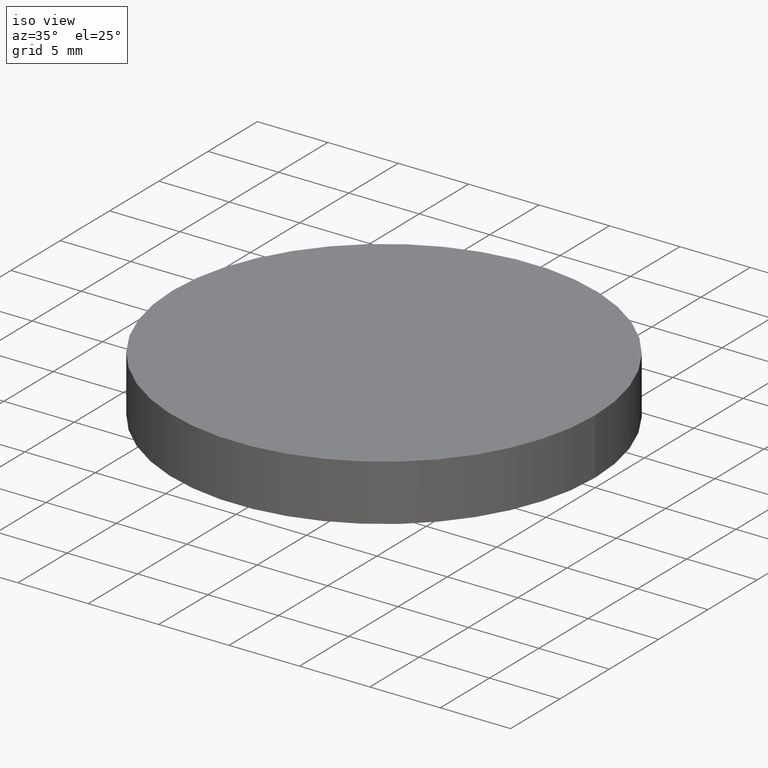
[diagram: clean part render]
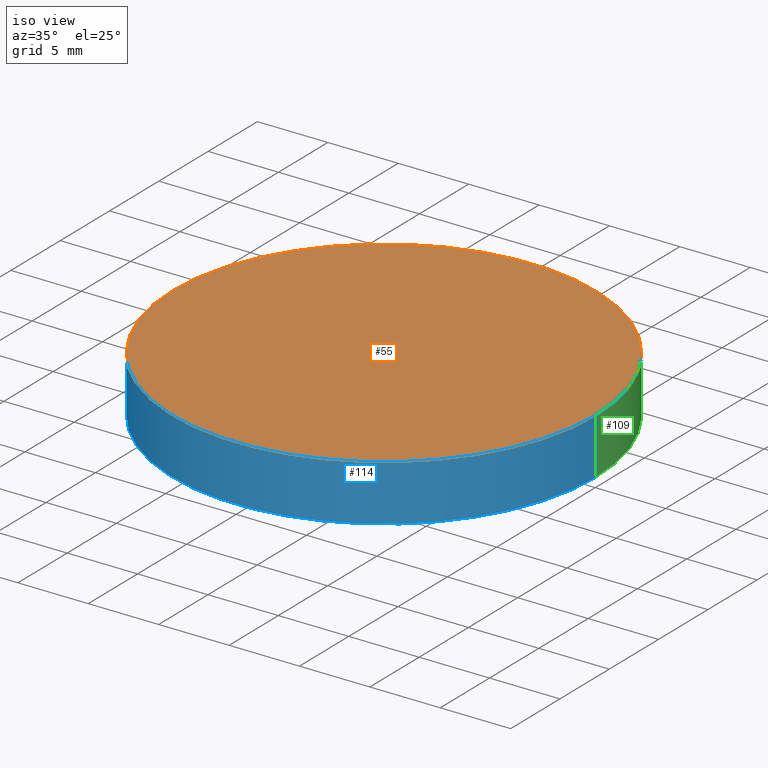
[diagram: same view with three faces highlighted in distinct colors, each labeled with its STEP entity id]
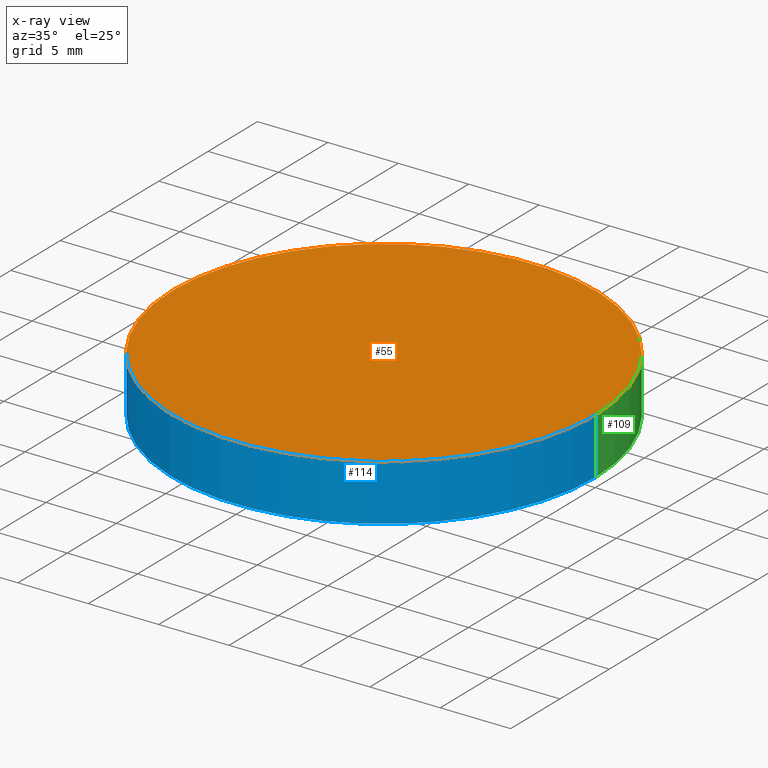
[diagram: x-ray of the same camera — body ghosted, the three highlighted faces saturated]
A machine part, iso view with three faces highlighted in distinct colors.
The next image is the same camera in x-ray (body ghosted, the three faces saturated) — at least one of them is partly hidden behind the body in this view.
Their STEP definitions:

[orange] entity #55 — the highlighted planar face has unit normal (0, 0, 1).
#2 = FACE_OUTER_BOUND ( 'NONE', #70, .T. ) ;
#5 = AXIS2_PLACEMENT_3D ( 'NONE', #85, #33, #101 ) ;
#7 = EDGE_CURVE ( 'NONE', #120, #37, #60, .T. ) ;
#30 = PLANE ( 'NONE',  #135 ) ;
#33 = DIRECTION ( 'NONE',  ( 0.0000000000000000000, 0.0000000000000000000, 1.000000000000000000 ) ) ;
#35 = CARTESIAN_POINT ( 'NONE',  ( 15.00000000000000000, 1.836970198721029600E-015, 4.000000000000000000 ) ) ;
#37 = VERTEX_POINT ( 'NONE', #54 ) ;
#42 = CIRCLE ( 'NONE', #5, 15.00000000000000000 ) ;
#45 = DIRECTION ( 'NONE',  ( 1.000000000000000000, 0.0000000000000000000, 0.0000000000000000000 ) ) ;
#50 = ORIENTED_EDGE ( 'NONE', *, *, #64, .T. ) ;
#54 = CARTESIAN_POINT ( 'NONE',  ( -15.00000000000000000, 0.0000000000000000000, 4.000000000000000000 ) ) ;
#55 = ADVANCED_FACE ( 'NONE', ( #2 ), #30, .T. ) ;
#60 = CIRCLE ( 'NONE', #111, 15.00000000000000000 ) ;
#64 = EDGE_CURVE ( 'NONE', #37, #120, #42, .T. ) ;
#70 = EDGE_LOOP ( 'NONE', ( #50, #106 ) ) ;
#72 = CARTESIAN_POINT ( 'NONE',  ( 0.0000000000000000000, 0.0000000000000000000, 4.000000000000000000 ) ) ;
#82 = DIRECTION ( 'NONE',  ( 0.0000000000000000000, 0.0000000000000000000, 1.000000000000000000 ) ) ;
#85 = CARTESIAN_POINT ( 'NONE',  ( 0.0000000000000000000, 0.0000000000000000000, 4.000000000000000000 ) ) ;
#97 = DIRECTION ( 'NONE',  ( 0.0000000000000000000, 0.0000000000000000000, 1.000000000000000000 ) ) ;
#98 = CARTESIAN_POINT ( 'NONE',  ( 0.0000000000000000000, 0.0000000000000000000, 4.000000000000000000 ) ) ;
#101 = DIRECTION ( 'NONE',  ( 1.000000000000000000, 0.0000000000000000000, 0.0000000000000000000 ) ) ;
#106 = ORIENTED_EDGE ( 'NONE', *, *, #7, .T. ) ;
#111 = AXIS2_PLACEMENT_3D ( 'NONE', #98, #97, #45 ) ;
#120 = VERTEX_POINT ( 'NONE', #35 ) ;
#128 = DIRECTION ( 'NONE',  ( 1.000000000000000000, 0.0000000000000000000, -0.0000000000000000000 ) ) ;
#135 = AXIS2_PLACEMENT_3D ( 'NONE', #72, #82, #128 ) ;

[blue] entity #114 — the highlighted cylindrical surface (partial cylindrical patch) has radius 15 mm, axis along (-0, -0, -1).
#5 = AXIS2_PLACEMENT_3D ( 'NONE', #85, #33, #101 ) ;
#6 = VERTEX_POINT ( 'NONE', #46 ) ;
#8 = DIRECTION ( 'NONE',  ( -0.0000000000000000000, -0.0000000000000000000, -1.000000000000000000 ) ) ;
#10 = CARTESIAN_POINT ( 'NONE',  ( 0.0000000000000000000, 0.0000000000000000000, 4.000000000000000000 ) ) ;
#16 = CIRCLE ( 'NONE', #90, 15.00000000000000000 ) ;
#21 = DIRECTION ( 'NONE',  ( -0.0000000000000000000, -0.0000000000000000000, -1.000000000000000000 ) ) ;
#24 = VERTEX_POINT ( 'NONE', #96 ) ;
#28 = DIRECTION ( 'NONE',  ( 1.000000000000000000, 0.0000000000000000000, 0.0000000000000000000 ) ) ;
#29 = DIRECTION ( 'NONE',  ( 0.0000000000000000000, 0.0000000000000000000, 1.000000000000000000 ) ) ;
#32 = AXIS2_PLACEMENT_3D ( 'NONE', #10, #21, #68 ) ;
#33 = DIRECTION ( 'NONE',  ( 0.0000000000000000000, 0.0000000000000000000, 1.000000000000000000 ) ) ;
#35 = CARTESIAN_POINT ( 'NONE',  ( 15.00000000000000000, 1.836970198721029600E-015, 4.000000000000000000 ) ) ;
#37 = VERTEX_POINT ( 'NONE', #54 ) ;
#40 = EDGE_CURVE ( 'NONE', #6, #24, #16, .T. ) ;
#42 = CIRCLE ( 'NONE', #5, 15.00000000000000000 ) ;
#46 = CARTESIAN_POINT ( 'NONE',  ( -15.00000000000000000, 0.0000000000000000000, 0.0000000000000000000 ) ) ;
#47 = CYLINDRICAL_SURFACE ( 'NONE', #32, 15.00000000000000000 ) ;
#54 = CARTESIAN_POINT ( 'NONE',  ( -15.00000000000000000, 0.0000000000000000000, 4.000000000000000000 ) ) ;
#59 = ORIENTED_EDGE ( 'NONE', *, *, #40, .T. ) ;
#64 = EDGE_CURVE ( 'NONE', #37, #120, #42, .T. ) ;
#65 = VECTOR ( 'NONE', #117, 1000.000000000000000 ) ;
#68 = DIRECTION ( 'NONE',  ( -1.000000000000000000, 0.0000000000000000000, 0.0000000000000000000 ) ) ;
#73 = CARTESIAN_POINT ( 'NONE',  ( 15.00000000000000000, 1.836970198721029600E-015, 4.000000000000000000 ) ) ;
#74 = LINE ( 'NONE', #73, #138 ) ;
#77 = ORIENTED_EDGE ( 'NONE', *, *, #107, .T. ) ;
#79 = ORIENTED_EDGE ( 'NONE', *, *, #103, .F. ) ;
#81 = CARTESIAN_POINT ( 'NONE',  ( 0.0000000000000000000, 0.0000000000000000000, 0.0000000000000000000 ) ) ;
#85 = CARTESIAN_POINT ( 'NONE',  ( 0.0000000000000000000, 0.0000000000000000000, 4.000000000000000000 ) ) ;
#87 = EDGE_LOOP ( 'NONE', ( #79, #139, #77, #59 ) ) ;
#90 = AXIS2_PLACEMENT_3D ( 'NONE', #81, #29, #28 ) ;
#96 = CARTESIAN_POINT ( 'NONE',  ( 15.00000000000000000, 1.836970198721029600E-015, 0.0000000000000000000 ) ) ;
#101 = DIRECTION ( 'NONE',  ( 1.000000000000000000, 0.0000000000000000000, 0.0000000000000000000 ) ) ;
#103 = EDGE_CURVE ( 'NONE', #120, #24, #74, .T. ) ;
#104 = FACE_OUTER_BOUND ( 'NONE', #87, .T. ) ;
#107 = EDGE_CURVE ( 'NONE', #37, #6, #127, .T. ) ;
#114 = ADVANCED_FACE ( 'NONE', ( #104 ), #47, .T. ) ;
#117 = DIRECTION ( 'NONE',  ( -0.0000000000000000000, -0.0000000000000000000, -1.000000000000000000 ) ) ;
#120 = VERTEX_POINT ( 'NONE', #35 ) ;
#127 = LINE ( 'NONE', #140, #65 ) ;
#138 = VECTOR ( 'NONE', #8, 1000.000000000000000 ) ;
#139 = ORIENTED_EDGE ( 'NONE', *, *, #64, .F. ) ;
#140 = CARTESIAN_POINT ( 'NONE',  ( -15.00000000000000000, 0.0000000000000000000, 4.000000000000000000 ) ) ;

[green] entity #109 — the highlighted cylindrical surface (partial cylindrical patch) has radius 15 mm, axis along (-0, -0, -1).
#3 = ORIENTED_EDGE ( 'NONE', *, *, #15, .T. ) ;
#6 = VERTEX_POINT ( 'NONE', #46 ) ;
#7 = EDGE_CURVE ( 'NONE', #120, #37, #60, .T. ) ;
#8 = DIRECTION ( 'NONE',  ( -0.0000000000000000000, -0.0000000000000000000, -1.000000000000000000 ) ) ;
#14 = ORIENTED_EDGE ( 'NONE', *, *, #107, .F. ) ;
#15 = EDGE_CURVE ( 'NONE', #24, #6, #134, .T. ) ;
#19 = DIRECTION ( 'NONE',  ( 1.000000000000000000, 0.0000000000000000000, 0.0000000000000000000 ) ) ;
#24 = VERTEX_POINT ( 'NONE', #96 ) ;
#25 = AXIS2_PLACEMENT_3D ( 'NONE', #67, #129, #62 ) ;
#26 = EDGE_LOOP ( 'NONE', ( #112, #53, #3, #14 ) ) ;
#35 = CARTESIAN_POINT ( 'NONE',  ( 15.00000000000000000, 1.836970198721029600E-015, 4.000000000000000000 ) ) ;
#37 = VERTEX_POINT ( 'NONE', #54 ) ;
#45 = DIRECTION ( 'NONE',  ( 1.000000000000000000, 0.0000000000000000000, 0.0000000000000000000 ) ) ;
#46 = CARTESIAN_POINT ( 'NONE',  ( -15.00000000000000000, 0.0000000000000000000, 0.0000000000000000000 ) ) ;
#53 = ORIENTED_EDGE ( 'NONE', *, *, #103, .T. ) ;
#54 = CARTESIAN_POINT ( 'NONE',  ( -15.00000000000000000, 0.0000000000000000000, 4.000000000000000000 ) ) ;
#56 = DIRECTION ( 'NONE',  ( 0.0000000000000000000, 0.0000000000000000000, 1.000000000000000000 ) ) ;
#60 = CIRCLE ( 'NONE', #111, 15.00000000000000000 ) ;
#62 = DIRECTION ( 'NONE',  ( -1.000000000000000000, 0.0000000000000000000, 0.0000000000000000000 ) ) ;
#65 = VECTOR ( 'NONE', #117, 1000.000000000000000 ) ;
#67 = CARTESIAN_POINT ( 'NONE',  ( 0.0000000000000000000, 0.0000000000000000000, 4.000000000000000000 ) ) ;
#73 = CARTESIAN_POINT ( 'NONE',  ( 15.00000000000000000, 1.836970198721029600E-015, 4.000000000000000000 ) ) ;
#74 = LINE ( 'NONE', #73, #138 ) ;
#94 = FACE_OUTER_BOUND ( 'NONE', #26, .T. ) ;
#96 = CARTESIAN_POINT ( 'NONE',  ( 15.00000000000000000, 1.836970198721029600E-015, 0.0000000000000000000 ) ) ;
#97 = DIRECTION ( 'NONE',  ( 0.0000000000000000000, 0.0000000000000000000, 1.000000000000000000 ) ) ;
#98 = CARTESIAN_POINT ( 'NONE',  ( 0.0000000000000000000, 0.0000000000000000000, 4.000000000000000000 ) ) ;
#99 = CARTESIAN_POINT ( 'NONE',  ( 0.0000000000000000000, 0.0000000000000000000, 0.0000000000000000000 ) ) ;
#103 = EDGE_CURVE ( 'NONE', #120, #24, #74, .T. ) ;
#107 = EDGE_CURVE ( 'NONE', #37, #6, #127, .T. ) ;
#109 = ADVANCED_FACE ( 'NONE', ( #94 ), #132, .T. ) ;
#111 = AXIS2_PLACEMENT_3D ( 'NONE', #98, #97, #45 ) ;
#112 = ORIENTED_EDGE ( 'NONE', *, *, #7, .F. ) ;
#117 = DIRECTION ( 'NONE',  ( -0.0000000000000000000, -0.0000000000000000000, -1.000000000000000000 ) ) ;
#120 = VERTEX_POINT ( 'NONE', #35 ) ;
#123 = AXIS2_PLACEMENT_3D ( 'NONE', #99, #56, #19 ) ;
#127 = LINE ( 'NONE', #140, #65 ) ;
#129 = DIRECTION ( 'NONE',  ( -0.0000000000000000000, -0.0000000000000000000, -1.000000000000000000 ) ) ;
#132 = CYLINDRICAL_SURFACE ( 'NONE', #25, 15.00000000000000000 ) ;
#134 = CIRCLE ( 'NONE', #123, 15.00000000000000000 ) ;
#138 = VECTOR ( 'NONE', #8, 1000.000000000000000 ) ;
#140 = CARTESIAN_POINT ( 'NONE',  ( -15.00000000000000000, 0.0000000000000000000, 4.000000000000000000 ) ) ;